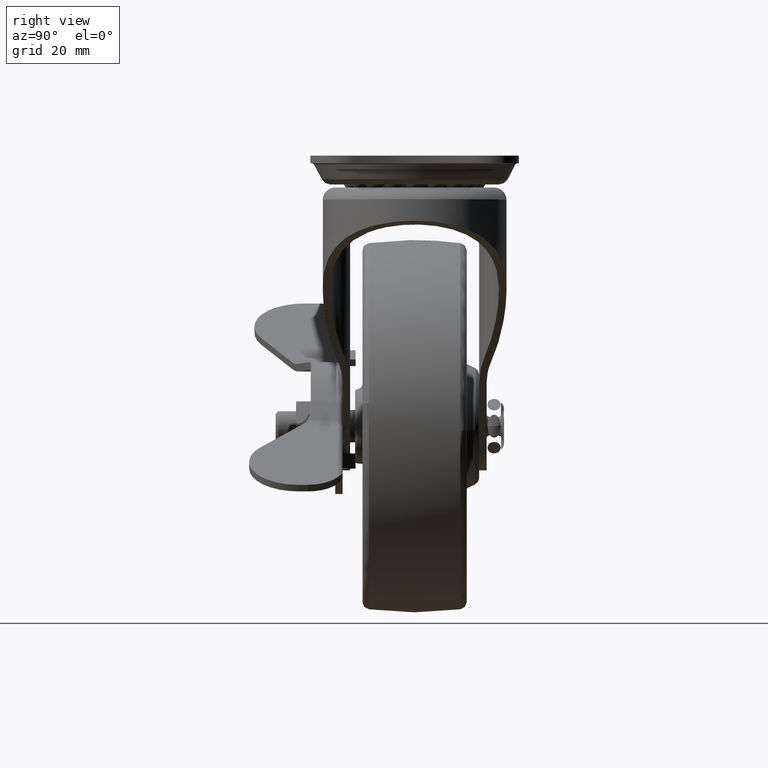
[diagram: clean part render]
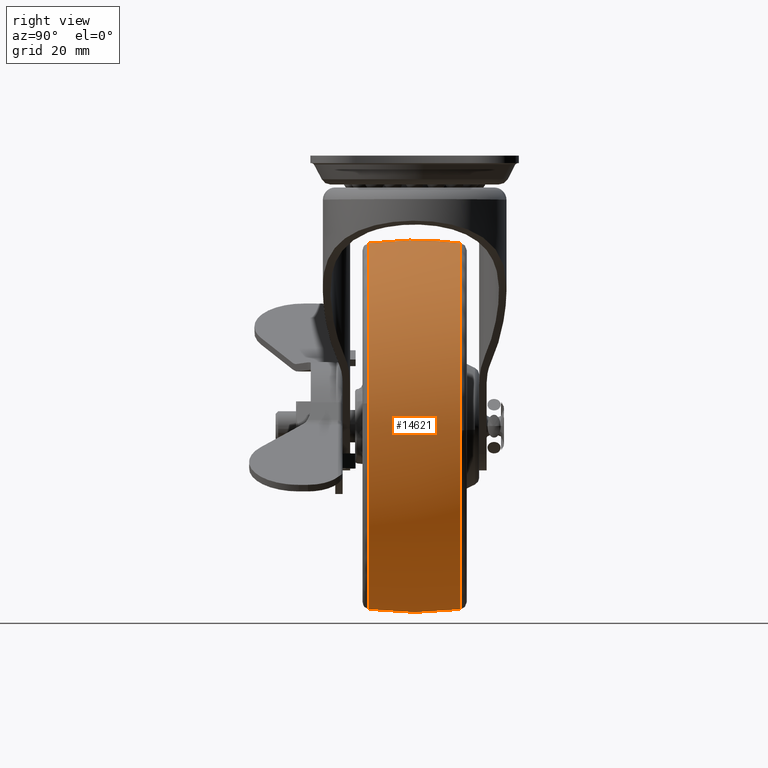
[diagram: same view with one face highlighted and labeled with its STEP entity id]
A machine part, right view. The second image highlights one B-rep face of the part: STEP entity #14621.
In plain terms, the highlighted face is a freeform B-spline surface patch.
Its self-contained STEP definition (entity closure, byte-faithful):
#13681=CARTESIAN_POINT('',(-13.825960608572490,-9.197079144007684,-86.628189679534898));
#13682=VERTEX_POINT('',#13681);
#13696=CARTESIAN_POINT('',(7.602269366789335,-9.197065561839022,-48.376054061176347));
#13697=VERTEX_POINT('',#13696);
#13698=CARTESIAN_POINT('',(-13.825960608572490,-9.197079144007684,-86.628189679534898));
#13699=CARTESIAN_POINT('',(7.893182043360997,-9.197075620987924,-76.827867106468332));
#13700=CARTESIAN_POINT('',(7.893182043360998,-9.197067102278673,-52.999994251898819));
#13701=CARTESIAN_POINT('',(7.893182043360998,-9.197066272453935,-50.678872849435969));
#13702=CARTESIAN_POINT('',(7.602269366789335,-9.197065561839024,-48.376054061176347));
#13710=(BOUNDED_CURVE()B_SPLINE_CURVE(2,(#13698,#13699,#13700,#13701,#13702),.UNSPECIFIED.,.F.,.U.)B_SPLINE_CURVE_WITH_KNOTS((3,2,3),(0.069848532038178,0.250000000000000,0.271678734600639),.UNSPECIFIED.)CURVE()GEOMETRIC_REPRESENTATION_ITEM()RATIONAL_B_SPLINE_CURVE((0.882061830270185,0.788939426698773,1.0,0.974601782572066,0.953608374863727))REPRESENTATION_ITEM(''));
#13711=EDGE_CURVE('',#13682,#13697,#13710,.T.);
#13810=CARTESIAN_POINT('',(-29.0,-9.197053912586586,-16.106810460436630));
#13811=VERTEX_POINT('',#13810);
#13812=CARTESIAN_POINT('',(7.602269366789336,-9.197065561839022,-48.376054061176340));
#13813=CARTESIAN_POINT('',(3.525716955183426,-9.197053912586586,-16.106810460436627));
#13814=CARTESIAN_POINT('',(-29.0,-9.197053912586586,-16.106810460436630));
#13822=(BOUNDED_CURVE()B_SPLINE_CURVE(2,(#13812,#13813,#13814),.UNSPECIFIED.,.F.,.U.)B_SPLINE_CURVE_WITH_KNOTS((3,3),(0.271678734600639,0.500000000000000),.UNSPECIFIED.)CURVE()GEOMETRIC_REPRESENTATION_ITEM()RATIONAL_B_SPLINE_CURVE((0.953608374863727,0.732504998614482,1.0))REPRESENTATION_ITEM(''));
#13823=EDGE_CURVE('',#13697,#13811,#13822,.T.);
#13825=CARTESIAN_POINT('',(-65.646431200407577,-9.197057098331250,-48.740161686782109));
#13826=VERTEX_POINT('',#13825);
#13840=CARTESIAN_POINT('',(-29.0,-9.197080291970760,-89.893178043361004));
#13841=VERTEX_POINT('',#13840);
#13842=CARTESIAN_POINT('',(-65.646431200407577,-9.197057098331250,-48.740161686782116));
#13843=CARTESIAN_POINT('',(-65.893185018028319,-9.197057696522746,-50.862931978050796));
#13844=CARTESIAN_POINT('',(-65.893184929592607,-9.197058368276737,-52.999995664500261));
#13845=CARTESIAN_POINT('',(-65.893183402883324,-9.197069965096494,-89.893177885328171));
#13846=CARTESIAN_POINT('',(-29.0,-9.197080291970760,-89.893178043361004));
#13854=(BOUNDED_CURVE()B_SPLINE_CURVE(2,(#13842,#13843,#13844,#13845,#13846),.UNSPECIFIED.,.F.,.U.)B_SPLINE_CURVE_WITH_KNOTS((3,2,3),(0.730000040960203,0.750000000000000,1.0),.UNSPECIFIED.)CURVE()GEOMETRIC_REPRESENTATION_ITEM()RATIONAL_B_SPLINE_CURVE((0.956886198810285,0.976568590482787,1.0,0.707106781186548,1.0))REPRESENTATION_ITEM(''));
#13855=EDGE_CURVE('',#13826,#13841,#13854,.T.);
#13857=CARTESIAN_POINT('',(-29.0,-9.197080291970760,-89.893178043361004));
#13858=CARTESIAN_POINT('',(-21.061717607158965,-9.197080291970760,-89.893178043361004));
#13859=CARTESIAN_POINT('',(-13.825960608572490,-9.197079144007684,-86.628189679534898));
#13867=(BOUNDED_CURVE()B_SPLINE_CURVE(2,(#13857,#13858,#13859),.UNSPECIFIED.,.F.,.U.)B_SPLINE_CURVE_WITH_KNOTS((3,3),(0.0,0.069848532038178),.UNSPECIFIED.)CURVE()GEOMETRIC_REPRESENTATION_ITEM()RATIONAL_B_SPLINE_CURVE((1.0,0.918167354487774,0.882061830270185))REPRESENTATION_ITEM(''));
#13868=EDGE_CURVE('',#13841,#13682,#13867,.T.);
#13897=CARTESIAN_POINT('',(7.883838126918651,9.197069421725690,-53.830307855807902));
#13898=VERTEX_POINT('',#13897);
#13899=CARTESIAN_POINT('',(-29.0,9.197057851166894,-16.106810982436670));
#13900=VERTEX_POINT('',#13899);
#13901=CARTESIAN_POINT('',(7.883838126918651,9.197069421725690,-53.830307855807902));
#13902=CARTESIAN_POINT('',(7.893182043360998,9.197069197847307,-53.415203760155869));
#13903=CARTESIAN_POINT('',(7.893182043360998,9.197069071568841,-52.999994512898837));
#13904=CARTESIAN_POINT('',(7.893182043360998,9.197057851166896,-16.106810982436674));
#13905=CARTESIAN_POINT('',(-29.0,9.197057851166894,-16.106810982436670));
#13913=(BOUNDED_CURVE()B_SPLINE_CURVE(2,(#13901,#13902,#13903,#13904,#13905),.UNSPECIFIED.,.F.,.U.)B_SPLINE_CURVE_WITH_KNOTS((3,2,3),(0.246039445069327,0.250000000000000,0.500000000000000),.UNSPECIFIED.)CURVE()GEOMETRIC_REPRESENTATION_ITEM()RATIONAL_B_SPLINE_CURVE((0.990866860838012,0.995359921272271,1.0,0.707106781186548,1.0))REPRESENTATION_ITEM(''));
#13914=EDGE_CURVE('',#13898,#13900,#13913,.T.);
#14023=CARTESIAN_POINT('',(-29.0,9.197080291970789,-89.893178043361004));
#14024=VERTEX_POINT('',#14023);
#14025=CARTESIAN_POINT('',(-29.0,9.197080291970789,-89.893178043361004));
#14026=CARTESIAN_POINT('',(7.072005401611445,9.197080291970789,-89.893178043361004));
#14027=CARTESIAN_POINT('',(7.883838126918651,9.197069421725690,-53.830307855807902));
#14035=(BOUNDED_CURVE()B_SPLINE_CURVE(2,(#14025,#14026,#14027),.UNSPECIFIED.,.F.,.U.)B_SPLINE_CURVE_WITH_KNOTS((3,3),(0.0,0.246039445069327),.UNSPECIFIED.)CURVE()GEOMETRIC_REPRESENTATION_ITEM()RATIONAL_B_SPLINE_CURVE((1.0,0.711746859914277,0.990866860838012))REPRESENTATION_ITEM(''));
#14036=EDGE_CURVE('',#14024,#13898,#14035,.T.);
#14038=CARTESIAN_POINT('',(-65.646430670382557,9.197061073495579,-48.740161689978102));
#14039=VERTEX_POINT('',#14038);
#14040=CARTESIAN_POINT('',(-65.646430670382557,9.197061073495579,-48.740161689978102));
#14041=CARTESIAN_POINT('',(-65.893184508200179,9.197061569162878,-50.862932008204510));
#14042=CARTESIAN_POINT('',(-65.893184434921466,9.197062125784775,-52.999995722001543));
#14043=CARTESIAN_POINT('',(-65.893183169874831,9.197071735022378,-89.893177912413407));
#14044=CARTESIAN_POINT('',(-29.0,9.197080291970789,-89.893178043361004));
#14052=(BOUNDED_CURVE()B_SPLINE_CURVE(2,(#14040,#14041,#14042,#14043,#14044),.UNSPECIFIED.,.F.,.U.)B_SPLINE_CURVE_WITH_KNOTS((3,2,3),(0.730000040694162,0.750000000000000,1.0),.UNSPECIFIED.)CURVE()GEOMETRIC_REPRESENTATION_ITEM()RATIONAL_B_SPLINE_CURVE((0.956886198286652,0.976568590171101,1.0,0.707106781186548,1.0))REPRESENTATION_ITEM(''));
#14053=EDGE_CURVE('',#14039,#14024,#14052,.T.);
#14529=CARTESIAN_POINT('',(-65.517970790736399,-10.125097810182668,-48.755086061873207));
#14530=CARTESIAN_POINT('',(-66.249186561240649,-5.089309195682345,-48.670088319010787));
#14531=CARTESIAN_POINT('',(-66.249186561240663,3.765664E-015,-48.670088319010794));
#14532=CARTESIAN_POINT('',(-66.249186561240649,5.089306947837049,-48.670088319010787));
#14533=CARTESIAN_POINT('',(-65.517971433266425,10.125093385160330,-48.755085987184458));
#14534=CARTESIAN_POINT('',(-65.763860665820786,-10.125097810182668,-50.870419345017432));
#14535=CARTESIAN_POINT('',(-66.500000000000000,-5.089309195682344,-50.827777872862697));
#14536=CARTESIAN_POINT('',(-66.500000000000000,3.765664E-015,-50.827777872862697));
#14537=CARTESIAN_POINT('',(-66.500000000000000,5.089306947837050,-50.827777872862704));
#14538=CARTESIAN_POINT('',(-65.763861312677207,10.125093385160330,-50.870419307547763));
#14539=CARTESIAN_POINT('',(-65.763860665820772,-10.125097810182663,-52.999995999999996));
#14540=CARTESIAN_POINT('',(-66.500000000000000,-5.089309195682343,-52.999996000000003));
#14541=CARTESIAN_POINT('',(-66.500000000000000,3.765664E-015,-52.999996000000003));
#14542=CARTESIAN_POINT('',(-66.500000000000014,5.089306947837049,-52.999996000000010));
#14543=CARTESIAN_POINT('',(-65.763861312677207,10.125093385160326,-52.999995999999996));
#14544=CARTESIAN_POINT('',(-65.763860665820800,-10.125097810182666,-89.763856665820782));
#14545=CARTESIAN_POINT('',(-66.500000000000000,-5.089309195682343,-90.499996000000010));
#14546=CARTESIAN_POINT('',(-66.500000000000014,3.765664E-015,-90.499996000000010));
#14547=CARTESIAN_POINT('',(-66.500000000000014,5.089306947837049,-90.499995999999982));
#14548=CARTESIAN_POINT('',(-65.763861312677207,10.125093385160330,-89.763857312677217));
#14549=CARTESIAN_POINT('',(-29.0,-10.125097810182663,-89.763856665820768));
#14550=CARTESIAN_POINT('',(-29.000000000000004,-5.089309195682343,-90.499995999999996));
#14551=CARTESIAN_POINT('',(-29.0,3.765664E-015,-90.499995999999996));
#14552=CARTESIAN_POINT('',(-29.000000000000007,5.089306947837049,-90.499995999999996));
#14553=CARTESIAN_POINT('',(-29.000000000000004,10.125093385160326,-89.763857312677189));
#14554=CARTESIAN_POINT('',(7.763860665820777,-10.125097810182666,-89.763856665820782));
#14555=CARTESIAN_POINT('',(8.500000000000004,-5.089309195682343,-90.499996000000010));
#14556=CARTESIAN_POINT('',(8.500000000000004,3.765664E-015,-90.499996000000010));
#14557=CARTESIAN_POINT('',(8.500000000000004,5.089306947837049,-90.499995999999982));
#14558=CARTESIAN_POINT('',(7.763861312677213,10.125093385160330,-89.763857312677217));
#14559=CARTESIAN_POINT('',(7.763860665820777,-10.125097810182663,-52.999995999999996));
#14560=CARTESIAN_POINT('',(8.500000000000004,-5.089309195682343,-52.999996000000003));
#14561=CARTESIAN_POINT('',(8.500000000000004,3.765664E-015,-52.999996000000003));
#14562=CARTESIAN_POINT('',(8.500000000000004,5.089306947837049,-52.999996000000010));
#14563=CARTESIAN_POINT('',(7.763861312677212,10.125093385160326,-52.999995999999996));
#14564=CARTESIAN_POINT('',(7.763860665820777,-10.125097810182666,-16.236135334179224));
#14565=CARTESIAN_POINT('',(8.500000000000004,-5.089309195682343,-15.499996000000001));
#14566=CARTESIAN_POINT('',(8.500000000000004,3.765664E-015,-15.499995999999996));
#14567=CARTESIAN_POINT('',(8.500000000000004,5.089306947837049,-15.499995999999994));
#14568=CARTESIAN_POINT('',(7.763861312677213,10.125093385160330,-16.236134687322792));
#14569=CARTESIAN_POINT('',(-29.0,-10.125097810182663,-16.236135334179217));
#14570=CARTESIAN_POINT('',(-29.000000000000004,-5.089309195682343,-15.499995999999998));
#14571=CARTESIAN_POINT('',(-29.0,3.765664E-015,-15.499995999999999));
#14572=CARTESIAN_POINT('',(-29.000000000000007,5.089306947837049,-15.499995999999996));
#14573=CARTESIAN_POINT('',(-29.000000000000004,10.125093385160326,-16.236134687322782));
#14581=(BOUNDED_SURFACE()B_SPLINE_SURFACE(2,2,((#14529,#14534,#14539,#14544,#14549,#14554,#14559,#14564,#14569),(#14530,#14535,#14540,#14545,#14550,#14555,#14560,#14565,#14570),(#14531,#14536,#14541,#14546,#14551,#14556,#14561,#14566,#14571),(#14532,#14537,#14542,#14547,#14552,#14557,#14562,#14567,#14572),(#14533,#14538,#14543,#14548,#14553,#14558,#14563,#14568,#14573)),.UNSPECIFIED.,.F.,.F.,.U.)B_SPLINE_SURFACE_WITH_KNOTS((3,2,3),(3,2,2,2,3),(0.0,10.330410012937451,20.660815553823230),(0.0,4.970561711536947,67.102596067501210,129.234630423465490,191.366664779429810),.UNSPECIFIED.)GEOMETRIC_REPRESENTATION_ITEM()RATIONAL_B_SPLINE_SURFACE(((0.924087721425026,0.943095504121372,0.965723815955949,0.682869859015801,0.965723815955949,0.682869859015801,0.965723815955949,0.682869859015801,0.965723815955949),(0.937868449645427,0.957159691456463,0.980125454604643,0.693053355364490,0.980125454604643,0.693053355364490,0.980125454604643,0.693053355364490,0.980125454604643),(0.956886126402807,0.976568547383107,1.0,0.707106781186548,1.0,0.707106781186548,1.0,0.707106781186548,1.0),(0.937868457878211,0.957159699858589,0.980125463208366,0.693053361448242,0.980125463208366,0.693053361448242,0.980125463208366,0.693053361448242,0.980125463208366),(0.924087733356427,0.943095516298193,0.965723828424937,0.682869867832707,0.965723828424937,0.682869867832707,0.965723828424937,0.682869867832707,0.965723828424937)))REPRESENTATION_ITEM('')SURFACE());
#14582=ORIENTED_EDGE('',*,*,#13855,.F.);
#14583=CARTESIAN_POINT('',(-65.646431200407577,-9.197057098331250,-48.740161686782102));
#14584=CARTESIAN_POINT('',(-66.249187484270109,-4.618547143041612,-48.670096259665712));
#14585=CARTESIAN_POINT('',(-66.249187482588198,8.725459E-014,-48.670096245193889));
#14586=CARTESIAN_POINT('',(-66.249187480906286,4.618549156732589,-48.670096230722073));
#14587=CARTESIAN_POINT('',(-65.646430670382557,9.197061073495577,-48.740161689978095));
#14595=(BOUNDED_CURVE()B_SPLINE_CURVE(2,(#14583,#14584,#14585,#14586,#14587),.UNSPECIFIED.,.F.,.U.)B_SPLINE_CURVE_WITH_KNOTS((3,2,3),(0.437409771222149,0.500000000000000,0.562590255574147),.UNSPECIFIED.)CURVE()GEOMETRIC_REPRESENTATION_ITEM()RATIONAL_B_SPLINE_CURVE((0.926634290708003,0.939595793720923,0.956886118190660,0.939595786318544,0.926634279609778))REPRESENTATION_ITEM(''));
#14596=EDGE_CURVE('',#13826,#14039,#14595,.T.);
#14597=ORIENTED_EDGE('',*,*,#14596,.T.);
#14598=ORIENTED_EDGE('',*,*,#14053,.T.);
#14599=ORIENTED_EDGE('',*,*,#14036,.T.);
#14600=ORIENTED_EDGE('',*,*,#13914,.T.);
#14601=CARTESIAN_POINT('',(-28.999999999999996,-9.197053912586586,-16.106810460436634));
#14602=CARTESIAN_POINT('',(-29.0,-4.618545529245827,-15.499995999999992));
#14603=CARTESIAN_POINT('',(-29.0,3.765664E-015,-15.499995999999999));
#14604=CARTESIAN_POINT('',(-29.000000000000007,4.618547524404317,-15.499995999999994));
#14605=CARTESIAN_POINT('',(-28.999999999999996,9.197057851166894,-16.106810982436677));
#14613=(BOUNDED_CURVE()B_SPLINE_CURVE(2,(#14601,#14602,#14603,#14604,#14605),.UNSPECIFIED.,.F.,.U.)B_SPLINE_CURVE_WITH_KNOTS((3,2,3),(0.437409792697025,0.500000000000000,0.562590233852660),.UNSPECIFIED.)CURVE()GEOMETRIC_REPRESENTATION_ITEM()RATIONAL_B_SPLINE_CURVE((0.968385142167591,0.981930641265783,1.0,0.981930633601073,0.968385130676059))REPRESENTATION_ITEM(''));
#14614=EDGE_CURVE('',#13811,#13900,#14613,.T.);
#14615=ORIENTED_EDGE('',*,*,#14614,.F.);
#14616=ORIENTED_EDGE('',*,*,#13823,.F.);
#14617=ORIENTED_EDGE('',*,*,#13711,.F.);
#14618=ORIENTED_EDGE('',*,*,#13868,.F.);
#14619=EDGE_LOOP('',(#14582,#14597,#14598,#14599,#14600,#14615,#14616,#14617,#14618));
#14620=FACE_OUTER_BOUND('',#14619,.T.);
#14621=ADVANCED_FACE('',(#14620),#14581,.T.);